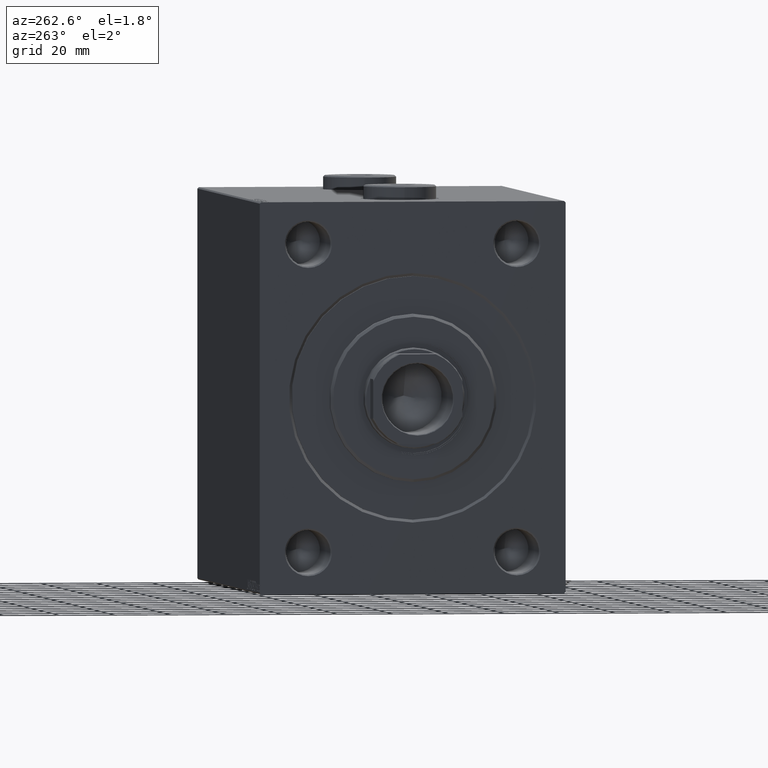
[diagram: clean part render]
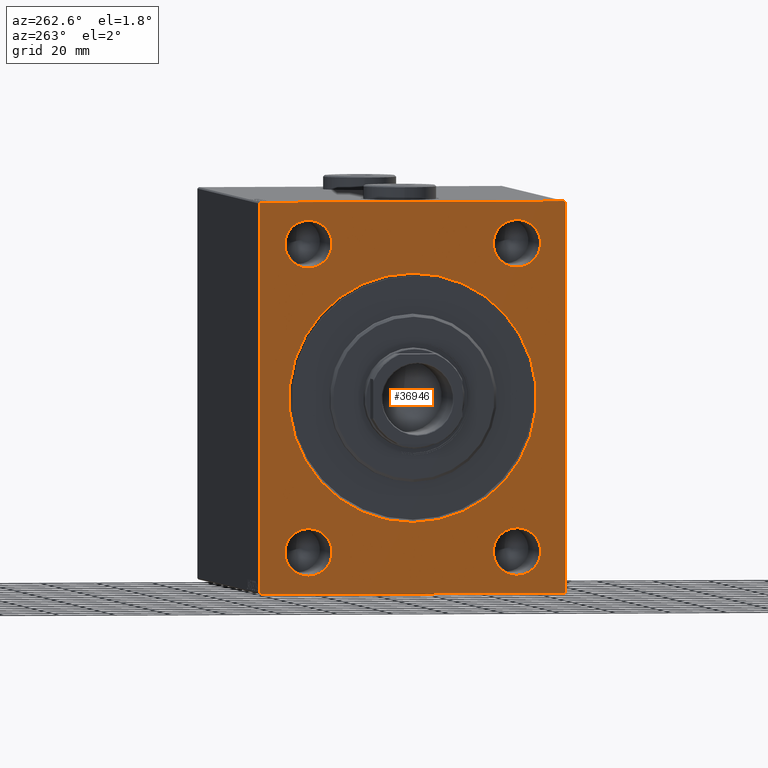
[diagram: same view with one face highlighted and labeled with its STEP entity id]
A machine part, auxiliary view. The second image highlights one B-rep face of the part: STEP entity #36946.
In plain terms, the highlighted planar face has unit normal (1, 0, 0).
Its self-contained STEP definition (entity closure, byte-faithful):
#4 = VERTEX_POINT ( 'NONE', #6680 ) ;
#513 = CARTESIAN_POINT ( 'NONE',  ( 0.000000000000000000, -37.49999999999999289, -46.49999999999998579 ) ) ;
#906 = ORIENTED_EDGE ( 'NONE', *, *, #3001, .T. ) ;
#1717 = CARTESIAN_POINT ( 'NONE',  ( 0.000000000000000000, 37.50000000000000000, -54.99999999999999289 ) ) ;
#1882 = DIRECTION ( 'NONE',  ( 0.000000000000000000, 0.000000000000000000, -1.000000000000000000 ) ) ;
#2032 = VERTEX_POINT ( 'NONE', #30502 ) ;
#2799 = VECTOR ( 'NONE', #42578, 1000.000000000000000 ) ;
#2970 = CARTESIAN_POINT ( 'NONE',  ( 0.000000000000000000, -37.49999999999999289, -54.99999999999999289 ) ) ;
#3001 = EDGE_CURVE ( 'NONE', #6057, #21462, #43190, .T. ) ;
#3056 = CARTESIAN_POINT ( 'NONE',  ( 0.000000000000000000, 37.50000000000000000, -63.50000000000000000 ) ) ;
#4091 = EDGE_CURVE ( 'NONE', #6658, #2032, #11739, .T. ) ;
#4181 = CARTESIAN_POINT ( 'NONE',  ( 0.000000000000000000, 54.99999999999999289, 70.00000000000001421 ) ) ;
#4324 = CIRCLE ( 'NONE', #19808, 8.500000000000007105 ) ;
#4337 = DIRECTION ( 'NONE',  ( 0.000000000000000000, 0.000000000000000000, -1.000000000000000000 ) ) ;
#4703 = DIRECTION ( 'NONE',  ( 1.000000000000000000, 0.000000000000000000, 0.000000000000000000 ) ) ;
#4870 = CARTESIAN_POINT ( 'NONE',  ( 0.000000000000000000, 0.000000000000000000, 0.000000000000000000 ) ) ;
#5664 = CARTESIAN_POINT ( 'NONE',  ( 0.000000000000000000, -55.00000000000000000, -70.00000000000000000 ) ) ;
#5950 = ORIENTED_EDGE ( 'NONE', *, *, #42270, .F. ) ;
#6057 = VERTEX_POINT ( 'NONE', #39811 ) ;
#6137 = FACE_OUTER_BOUND ( 'NONE', #10071, .T. ) ;
#6154 = CARTESIAN_POINT ( 'NONE',  ( 0.000000000000000000, -37.49999999999999289, 63.50000000000001421 ) ) ;
#6362 = DIRECTION ( 'NONE',  ( -0.000000000000000000, -0.7071067811865474617, 0.7071067811865474617 ) ) ;
#6502 = EDGE_CURVE ( 'NONE', #37152, #2032, #45500, .T. ) ;
#6658 = VERTEX_POINT ( 'NONE', #16732 ) ;
#6661 = EDGE_CURVE ( 'NONE', #42110, #22452, #10634, .T. ) ;
#6680 = CARTESIAN_POINT ( 'NONE',  ( 0.000000000000000000, 37.50000000000000000, 63.50000000000001421 ) ) ;
#6772 = EDGE_CURVE ( 'NONE', #4, #44045, #16519, .T. ) ;
#7290 = EDGE_CURVE ( 'NONE', #18789, #12269, #21612, .T. ) ;
#7851 = AXIS2_PLACEMENT_3D ( 'NONE', #1717, #24285, #26423 ) ;
#8173 = CARTESIAN_POINT ( 'NONE',  ( 0.000000000000000000, 37.50000000000000000, 55.00000000000000711 ) ) ;
#8501 = CARTESIAN_POINT ( 'NONE',  ( 0.000000000000000000, 55.00000000000000711, -69.99999999999998579 ) ) ;
#8820 = DIRECTION ( 'NONE',  ( 1.000000000000000000, 0.000000000000000000, 0.000000000000000000 ) ) ;
#9350 = CARTESIAN_POINT ( 'NONE',  ( 0.000000000000000000, 5.449678256205716459E-15, -44.49999999999995737 ) ) ;
#9824 = LINE ( 'NONE', #23920, #30829 ) ;
#9832 = FACE_BOUND ( 'NONE', #27212, .T. ) ;
#9902 = AXIS2_PLACEMENT_3D ( 'NONE', #8173, #4703, #40499 ) ;
#10023 = CARTESIAN_POINT ( 'NONE',  ( 0.000000000000000000, 55.00000000000000711, -69.49999999999998579 ) ) ;
#10026 = CARTESIAN_POINT ( 'NONE',  ( 0.000000000000000000, 54.50000000000001421, -69.99999999999998579 ) ) ;
#10071 = EDGE_LOOP ( 'NONE', ( #29285, #906, #5950, #15150, #25773, #16578, #39195, #24364 ) ) ;
#10634 = CIRCLE ( 'NONE', #40151, 8.500000000000007105 ) ;
#10895 = DIRECTION ( 'NONE',  ( 0.000000000000000000, -1.000000000000000000, -1.261617073437677999E-16 ) ) ;
#11739 = LINE ( 'NONE', #8501, #30460 ) ;
#11758 = EDGE_LOOP ( 'NONE', ( #38763, #29596 ) ) ;
#12269 = VERTEX_POINT ( 'NONE', #15499 ) ;
#12378 = ORIENTED_EDGE ( 'NONE', *, *, #27095, .T. ) ;
#12468 = CIRCLE ( 'NONE', #14680, 8.500000000000007105 ) ;
#12569 = CARTESIAN_POINT ( 'NONE',  ( 0.000000000000000000, 54.49999999999999289, 70.00000000000001421 ) ) ;
#13014 = CARTESIAN_POINT ( 'NONE',  ( 0.000000000000000000, -37.49999999999999289, -54.99999999999999289 ) ) ;
#13852 = ORIENTED_EDGE ( 'NONE', *, *, #16179, .T. ) ;
#14680 = AXIS2_PLACEMENT_3D ( 'NONE', #26270, #40370, #19342 ) ;
#14816 = VERTEX_POINT ( 'NONE', #37299 ) ;
#15150 = ORIENTED_EDGE ( 'NONE', *, *, #6502, .T. ) ;
#15230 = EDGE_LOOP ( 'NONE', ( #36010, #22856 ) ) ;
#15499 = CARTESIAN_POINT ( 'NONE',  ( 0.000000000000000000, 0.000000000000000000, 44.49999999999995737 ) ) ;
#15511 = VECTOR ( 'NONE', #10895, 1000.000000000000000 ) ;
#15694 = DIRECTION ( 'NONE',  ( -0.000000000000000000, 0.7071067811865525687, 0.7071067811865425767 ) ) ;
#16179 = EDGE_CURVE ( 'NONE', #22452, #42110, #30677, .T. ) ;
#16500 = ORIENTED_EDGE ( 'NONE', *, *, #28129, .T. ) ;
#16519 = CIRCLE ( 'NONE', #9902, 8.500000000000007105 ) ;
#16578 = ORIENTED_EDGE ( 'NONE', *, *, #25367, .T. ) ;
#16732 = CARTESIAN_POINT ( 'NONE',  ( 0.000000000000000000, 55.00000000000000711, -69.49999999999998579 ) ) ;
#16838 = AXIS2_PLACEMENT_3D ( 'NONE', #2970, #27448, #41087 ) ;
#17305 = CARTESIAN_POINT ( 'NONE',  ( 0.000000000000000000, 54.49999999999999289, 70.00000000000001421 ) ) ;
#18243 = ORIENTED_EDGE ( 'NONE', *, *, #6661, .T. ) ;
#18497 = EDGE_CURVE ( 'NONE', #27481, #36004, #20447, .T. ) ;
#18628 = EDGE_LOOP ( 'NONE', ( #33668, #16500 ) ) ;
#18789 = VERTEX_POINT ( 'NONE', #9350 ) ;
#18960 = DIRECTION ( 'NONE',  ( 0.000000000000000000, 0.000000000000000000, -1.000000000000000000 ) ) ;
#19342 = DIRECTION ( 'NONE',  ( 0.000000000000000000, 0.000000000000000000, -1.000000000000000000 ) ) ;
#19441 = CARTESIAN_POINT ( 'NONE',  ( 0.000000000000000000, -37.49999999999999289, 55.00000000000000711 ) ) ;
#19795 = AXIS2_PLACEMENT_3D ( 'NONE', #30718, #8820, #40910 ) ;
#19808 = AXIS2_PLACEMENT_3D ( 'NONE', #19441, #33518, #1882 ) ;
#20223 = CARTESIAN_POINT ( 'NONE',  ( 0.000000000000000000, -37.49999999999999289, 46.50000000000000000 ) ) ;
#20447 = CIRCLE ( 'NONE', #44786, 8.500000000000007105 ) ;
#20548 = DIRECTION ( 'NONE',  ( -0.000000000000000000, 0.7071067811865474617, -0.7071067811865474617 ) ) ;
#20694 = FACE_BOUND ( 'NONE', #11758, .T. ) ;
#21462 = VERTEX_POINT ( 'NONE', #37577 ) ;
#21612 = CIRCLE ( 'NONE', #29812, 44.49999999999995737 ) ;
#22275 = VERTEX_POINT ( 'NONE', #37305 ) ;
#22354 = CARTESIAN_POINT ( 'NONE',  ( 0.000000000000000000, -37.49999999999999289, 55.00000000000000711 ) ) ;
#22452 = VERTEX_POINT ( 'NONE', #22902 ) ;
#22856 = ORIENTED_EDGE ( 'NONE', *, *, #26826, .T. ) ;
#22902 = CARTESIAN_POINT ( 'NONE',  ( 0.000000000000000000, 37.50000000000000000, -46.49999999999998579 ) ) ;
#23902 = DIRECTION ( 'NONE',  ( 0.000000000000000000, 0.000000000000000000, -1.000000000000000000 ) ) ;
#23920 = CARTESIAN_POINT ( 'NONE',  ( 0.000000000000000000, -54.50000000000000000, -70.00000000000000000 ) ) ;
#23926 = DIRECTION ( 'NONE',  ( 1.000000000000000000, 0.000000000000000000, 0.000000000000000000 ) ) ;
#24285 = DIRECTION ( 'NONE',  ( 1.000000000000000000, 0.000000000000000000, 0.000000000000000000 ) ) ;
#24364 = ORIENTED_EDGE ( 'NONE', *, *, #32976, .T. ) ;
#24558 = VECTOR ( 'NONE', #15694, 999.9999999999998863 ) ;
#25367 = EDGE_CURVE ( 'NONE', #6658, #28634, #28036, .T. ) ;
#25773 = ORIENTED_EDGE ( 'NONE', *, *, #4091, .F. ) ;
#26270 = CARTESIAN_POINT ( 'NONE',  ( 0.000000000000000000, 37.50000000000000000, 55.00000000000000711 ) ) ;
#26338 = DIRECTION ( 'NONE',  ( 1.000000000000000000, 0.000000000000000000, 0.000000000000000000 ) ) ;
#26423 = DIRECTION ( 'NONE',  ( 0.000000000000000000, 0.000000000000000000, -1.000000000000000000 ) ) ;
#26738 = VERTEX_POINT ( 'NONE', #513 ) ;
#26826 = EDGE_CURVE ( 'NONE', #36004, #27481, #4324, .T. ) ;
#27091 = DIRECTION ( 'NONE',  ( 1.000000000000000000, 0.000000000000000000, 0.000000000000000000 ) ) ;
#27095 = EDGE_CURVE ( 'NONE', #41583, #26738, #36756, .T. ) ;
#27212 = EDGE_LOOP ( 'NONE', ( #37066, #12378 ) ) ;
#27382 = FACE_BOUND ( 'NONE', #15230, .T. ) ;
#27448 = DIRECTION ( 'NONE',  ( 1.000000000000000000, 0.000000000000000000, 0.000000000000000000 ) ) ;
#27481 = VERTEX_POINT ( 'NONE', #6154 ) ;
#27835 = FACE_BOUND ( 'NONE', #43176, .T. ) ;
#28036 = LINE ( 'NONE', #10023, #2799 ) ;
#28071 = FACE_BOUND ( 'NONE', #18628, .T. ) ;
#28129 = EDGE_CURVE ( 'NONE', #44045, #4, #12468, .T. ) ;
#28634 = VERTEX_POINT ( 'NONE', #10026 ) ;
#28733 = AXIS2_PLACEMENT_3D ( 'NONE', #13014, #27091, #41187 ) ;
#29285 = ORIENTED_EDGE ( 'NONE', *, *, #38734, .F. ) ;
#29596 = ORIENTED_EDGE ( 'NONE', *, *, #7290, .T. ) ;
#29812 = AXIS2_PLACEMENT_3D ( 'NONE', #4870, #26338, #18960 ) ;
#30150 = DIRECTION ( 'NONE',  ( 0.000000000000000000, 1.000000000000000000, 1.261617073437677752E-16 ) ) ;
#30460 = VECTOR ( 'NONE', #36659, 1000.000000000000000 ) ;
#30502 = CARTESIAN_POINT ( 'NONE',  ( 0.000000000000000000, 54.99999999999999289, 69.50000000000001421 ) ) ;
#30609 = EDGE_CURVE ( 'NONE', #14816, #28634, #40570, .T. ) ;
#30677 = CIRCLE ( 'NONE', #7851, 8.500000000000007105 ) ;
#30718 = CARTESIAN_POINT ( 'NONE',  ( 0.000000000000000000, 0.000000000000000000, 0.000000000000000000 ) ) ;
#30813 = DIRECTION ( 'NONE',  ( 1.000000000000000000, 0.000000000000000000, 0.000000000000000000 ) ) ;
#30829 = VECTOR ( 'NONE', #6362, 1000.000000000000114 ) ;
#31770 = CARTESIAN_POINT ( 'NONE',  ( 0.000000000000000000, -55.00000000000000000, 70.00000000000000000 ) ) ;
#32976 = EDGE_CURVE ( 'NONE', #14816, #22275, #9824, .T. ) ;
#33518 = DIRECTION ( 'NONE',  ( 1.000000000000000000, 0.000000000000000000, 0.000000000000000000 ) ) ;
#33633 = EDGE_CURVE ( 'NONE', #12269, #18789, #39001, .T. ) ;
#33668 = ORIENTED_EDGE ( 'NONE', *, *, #6772, .T. ) ;
#34299 = DIRECTION ( 'NONE',  ( 0.000000000000000000, 0.000000000000000000, -1.000000000000000000 ) ) ;
#34796 = CARTESIAN_POINT ( 'NONE',  ( 0.000000000000000000, -37.49999999999999289, -63.50000000000000000 ) ) ;
#35231 = LINE ( 'NONE', #31770, #36802 ) ;
#36004 = VERTEX_POINT ( 'NONE', #20223 ) ;
#36010 = ORIENTED_EDGE ( 'NONE', *, *, #18497, .T. ) ;
#36438 = EDGE_CURVE ( 'NONE', #26738, #41583, #45735, .T. ) ;
#36648 = DIRECTION ( 'NONE',  ( 1.000000000000000000, 0.000000000000000000, 0.000000000000000000 ) ) ;
#36659 = DIRECTION ( 'NONE',  ( 0.000000000000000000, -9.912705577010325549E-17, 1.000000000000000000 ) ) ;
#36756 = CIRCLE ( 'NONE', #16838, 8.500000000000007105 ) ;
#36802 = VECTOR ( 'NONE', #45191, 1000.000000000000000 ) ;
#36946 = ADVANCED_FACE ( 'NONE', ( #20694, #9832, #27382, #28071, #27835, #6137 ), #41703, .F. ) ;
#37066 = ORIENTED_EDGE ( 'NONE', *, *, #36438, .T. ) ;
#37152 = VERTEX_POINT ( 'NONE', #12569 ) ;
#37299 = CARTESIAN_POINT ( 'NONE',  ( 0.000000000000000000, -54.50000000000000000, -70.00000000000000000 ) ) ;
#37305 = CARTESIAN_POINT ( 'NONE',  ( 0.000000000000000000, -55.00000000000000000, -69.50000000000000000 ) ) ;
#37577 = CARTESIAN_POINT ( 'NONE',  ( 0.000000000000000000, -54.49999999999999289, 70.00000000000000000 ) ) ;
#38624 = LINE ( 'NONE', #4181, #15511 ) ;
#38734 = EDGE_CURVE ( 'NONE', #6057, #22275, #35231, .T. ) ;
#38763 = ORIENTED_EDGE ( 'NONE', *, *, #33633, .T. ) ;
#39001 = CIRCLE ( 'NONE', #19795, 44.49999999999995737 ) ;
#39195 = ORIENTED_EDGE ( 'NONE', *, *, #30609, .F. ) ;
#39811 = CARTESIAN_POINT ( 'NONE',  ( 0.000000000000000000, -55.00000000000000000, 69.50000000000000000 ) ) ;
#39825 = AXIS2_PLACEMENT_3D ( 'NONE', #41471, #23926, #34299 ) ;
#40151 = AXIS2_PLACEMENT_3D ( 'NONE', #41916, #30813, #23902 ) ;
#40214 = CARTESIAN_POINT ( 'NONE',  ( 0.000000000000000000, 37.50000000000000000, 46.50000000000000000 ) ) ;
#40370 = DIRECTION ( 'NONE',  ( 1.000000000000000000, 0.000000000000000000, 0.000000000000000000 ) ) ;
#40499 = DIRECTION ( 'NONE',  ( 0.000000000000000000, 0.000000000000000000, -1.000000000000000000 ) ) ;
#40570 = LINE ( 'NONE', #5664, #42046 ) ;
#40910 = DIRECTION ( 'NONE',  ( 0.000000000000000000, 0.000000000000000000, -1.000000000000000000 ) ) ;
#41087 = DIRECTION ( 'NONE',  ( 0.000000000000000000, 0.000000000000000000, -1.000000000000000000 ) ) ;
#41187 = DIRECTION ( 'NONE',  ( 0.000000000000000000, 0.000000000000000000, -1.000000000000000000 ) ) ;
#41471 = CARTESIAN_POINT ( 'NONE',  ( 0.000000000000000000, 0.000000000000000000, 0.000000000000000000 ) ) ;
#41583 = VERTEX_POINT ( 'NONE', #34796 ) ;
#41703 = PLANE ( 'NONE',  #39825 ) ;
#41916 = CARTESIAN_POINT ( 'NONE',  ( 0.000000000000000000, 37.50000000000000000, -54.99999999999999289 ) ) ;
#42046 = VECTOR ( 'NONE', #30150, 1000.000000000000000 ) ;
#42110 = VERTEX_POINT ( 'NONE', #3056 ) ;
#42270 = EDGE_CURVE ( 'NONE', #37152, #21462, #38624, .T. ) ;
#42578 = DIRECTION ( 'NONE',  ( 0.000000000000000000, -0.7071067811865426878, -0.7071067811865524577 ) ) ;
#43176 = EDGE_LOOP ( 'NONE', ( #13852, #18243 ) ) ;
#43190 = LINE ( 'NONE', #43425, #24558 ) ;
#43425 = CARTESIAN_POINT ( 'NONE',  ( 0.000000000000000000, -55.00000000000000000, 69.50000000000000000 ) ) ;
#44045 = VERTEX_POINT ( 'NONE', #40214 ) ;
#44565 = VECTOR ( 'NONE', #20548, 1000.000000000000114 ) ;
#44786 = AXIS2_PLACEMENT_3D ( 'NONE', #22354, #36648, #4337 ) ;
#45191 = DIRECTION ( 'NONE',  ( 0.000000000000000000, 0.000000000000000000, -1.000000000000000000 ) ) ;
#45500 = LINE ( 'NONE', #17305, #44565 ) ;
#45735 = CIRCLE ( 'NONE', #28733, 8.500000000000007105 ) ;